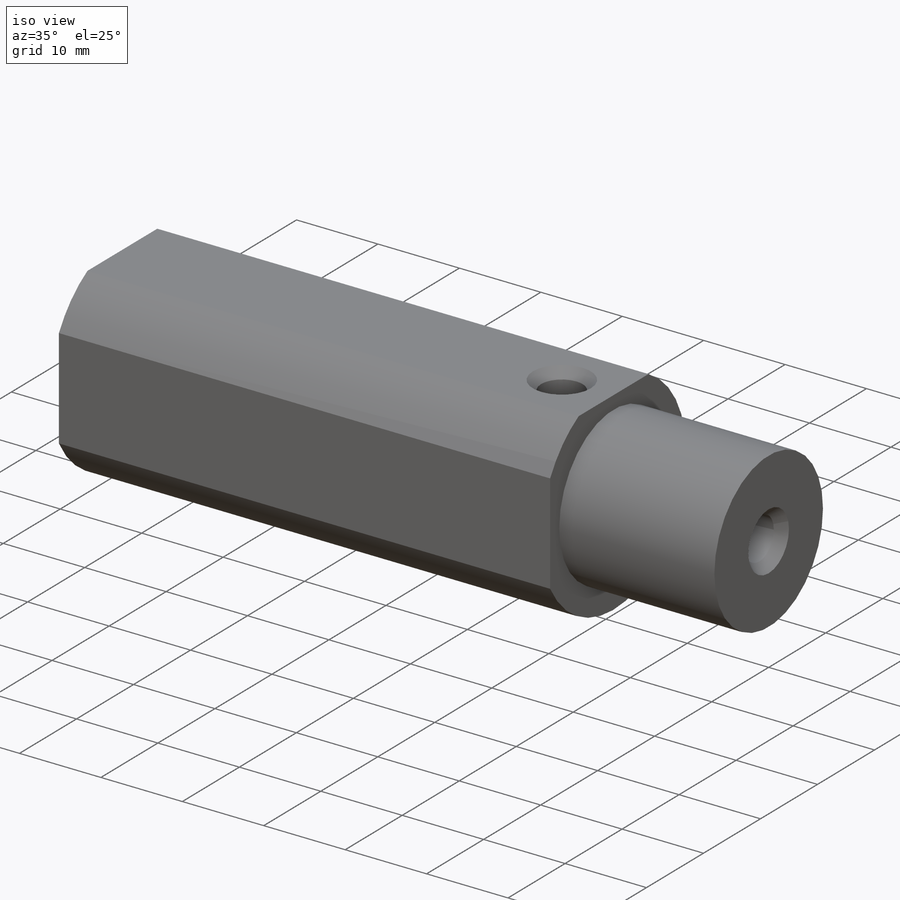
[diagram: iso view]
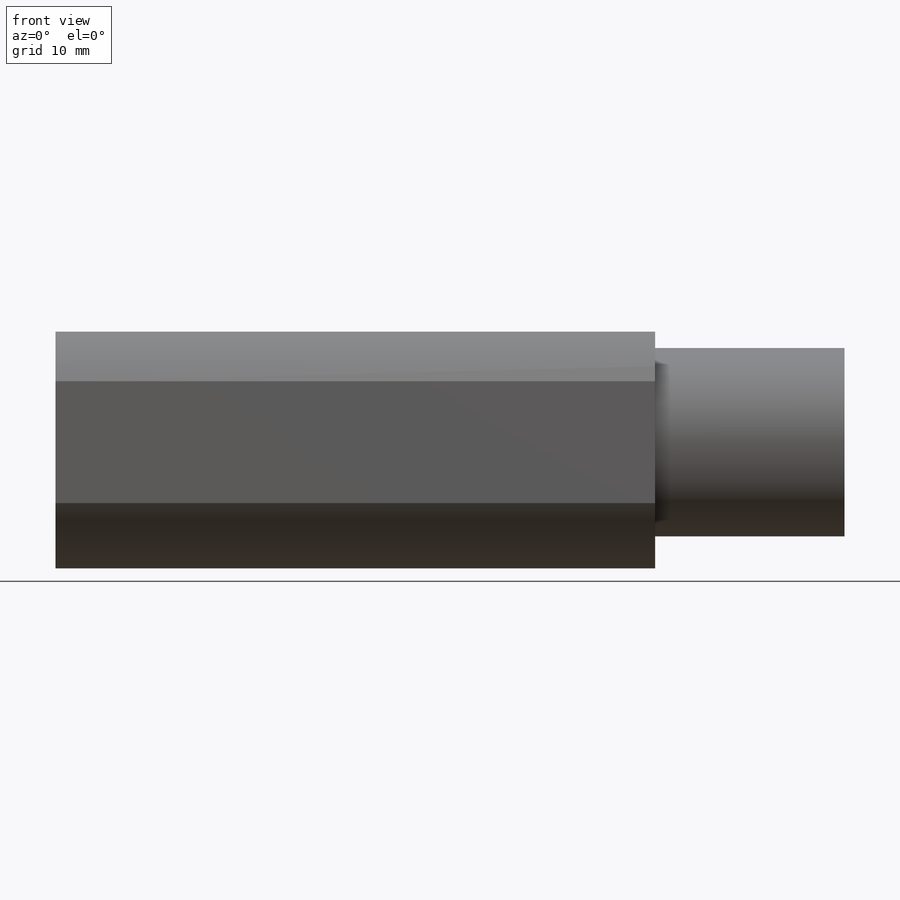
[diagram: front view]
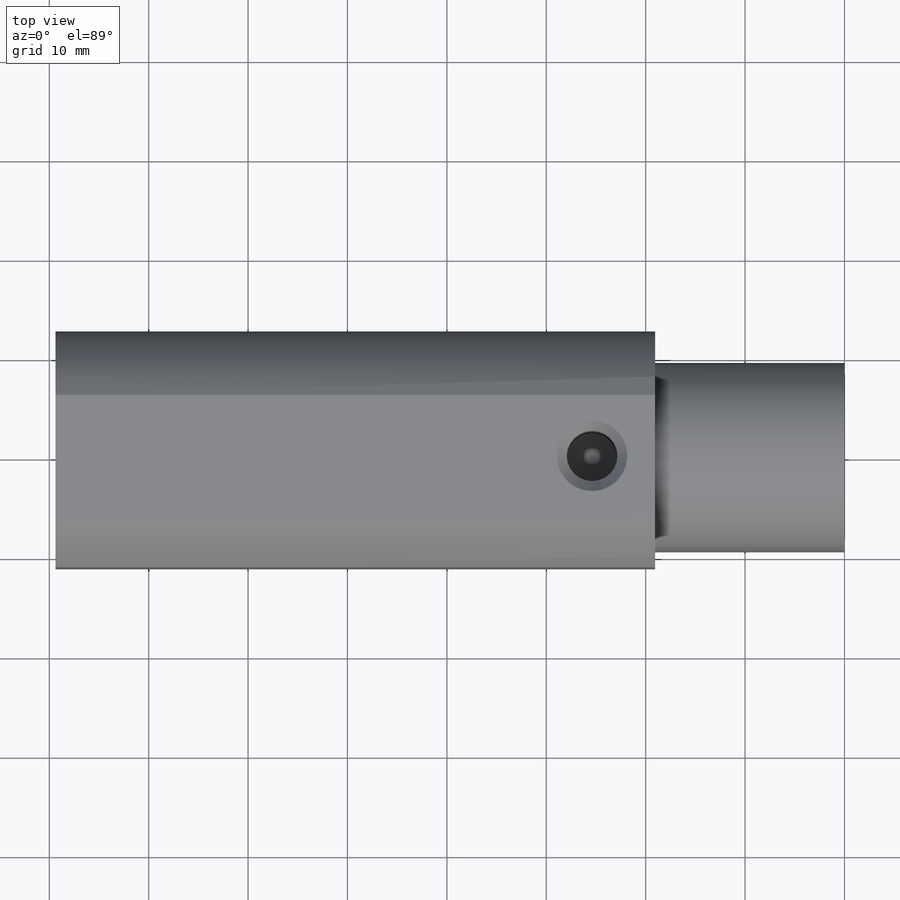
[diagram: top view]
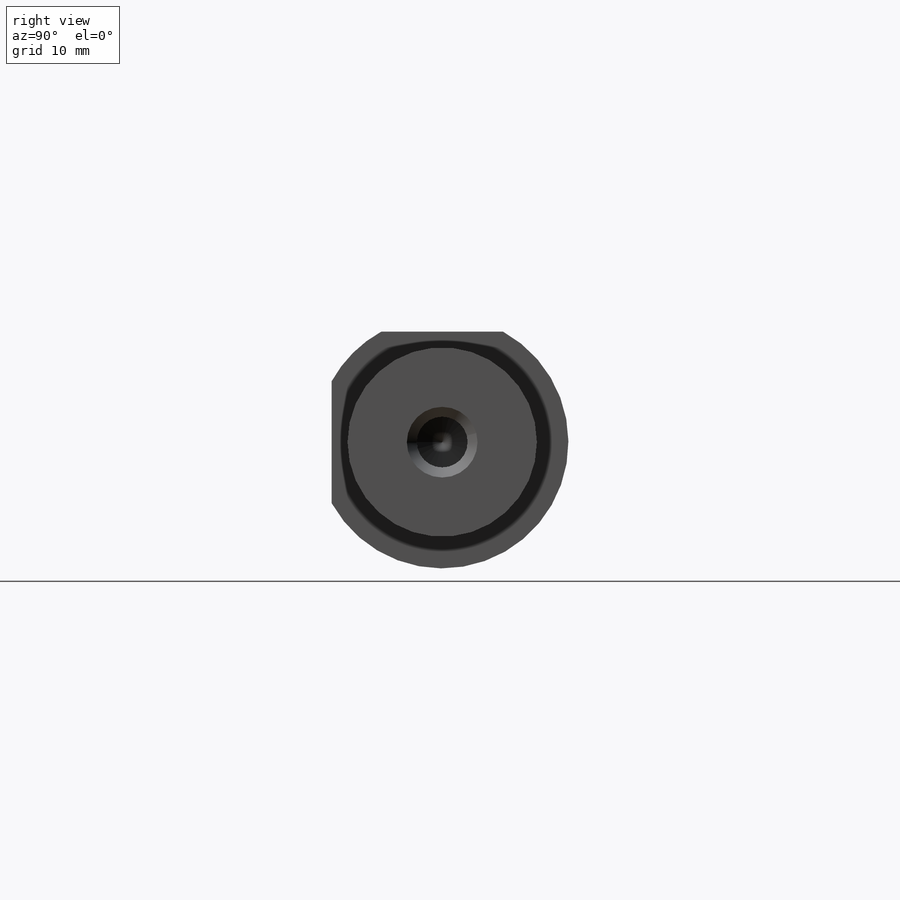
[diagram: right view]
SOLIDWORKS PART (.sldprt)
format: sldprt  version: not decoded by parser v0  size: 247,808 bytes
history: native  units: mm
features: sketch x8, cut_extrude x3, plane x2, hole x2, thread x2, material x1, extrude x1 (+12 scaffold rows collapsed)
feature tree (31):
  scaffold x12  (default folders/planes/origin — collapsed)
  material  "Material <not specified>"
  sketch  "Sketch1"  dims[D1=~21.992264mm]
  extrude  "Boss-Extrude1"  Depth=79.375mm
  sketch  "Sketch2"  dims[D1=~8.179848mm]
  cut_extrude  "Cut-Extrude1"  Depth=19.05mm
  plane  "Plane1"  Offset=11.1252mm
  sketch  "Sketch3"
  cut_extrude  "Cut-Extrude2"  Depth=7.62mm
  plane  "Plane3"  Offset=11.1252mm
  sketch  "Sketch7"
  cut_extrude  "Cut-Extrude5"  Depth=25.4mm
  hole  "1/4-20 Tapped Hole2"  Diameter=5.1054mm Depth=16.002mm
  sketch  "Sketch15"  dims[D1=25.4mm D2=11.1252mm]
  sketch  "Sketch14"  dims[hole-wizard template sketch: 40 standard entries collapsed; hole parameters kept: c13.Tap Drill Depth=16.002mm c13.Near C'Sink Dia.=7.112mm c13.D4=~33.297463mm c13.Near C'Sink Angle=82.0deg c14.D5=~14.816244mm c14.Drill Angle=118.0deg]
  thread  "Hole Thread2"  Diameter=12.7mm  [1 undecoded]
  hole  "1/4-20 Tapped Hole3"  Diameter=5.1054mm Depth=16.002mm
  sketch  "Sketch17"  dims[D1=~0.736967mm]
  sketch  "Sketch16"  dims[hole-wizard template sketch: 40 standard entries collapsed; hole parameters kept: c13.Tap Drill Depth=16.002mm c13.Near C'Sink Dia.=7.112mm c13.D4=~33.297463mm c13.Near C'Sink Angle=82.0deg c14.D5=~14.816244mm c14.Drill Angle=118.0deg]
  thread  "Hole Thread3"  Diameter=12.7mm  [1 undecoded]
decode coverage: 14 of 16 modeling features carry decoded parameters
note: ~ marks probable driven/reference dimensions
note: 2 parameter values undecoded
note: suppression state not decoded; provenance and decode notes live in map.json
